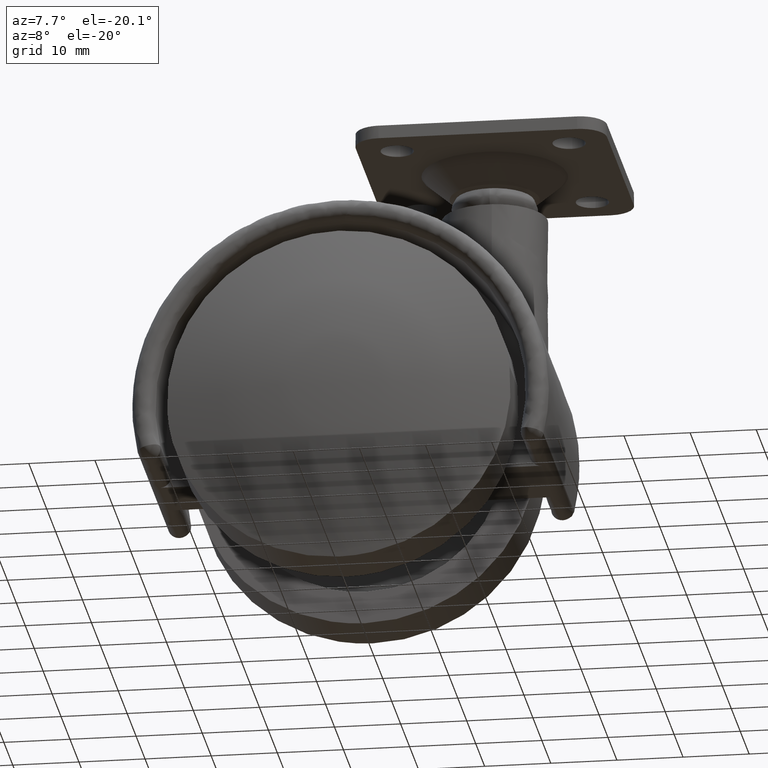
[diagram: clean part render]
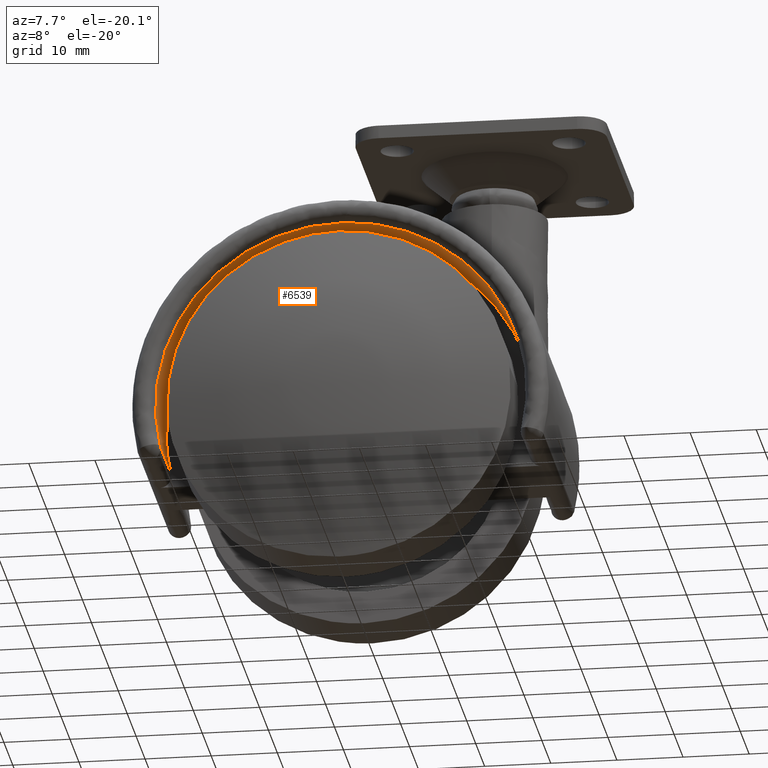
[diagram: same view with one face highlighted and labeled with its STEP entity id]
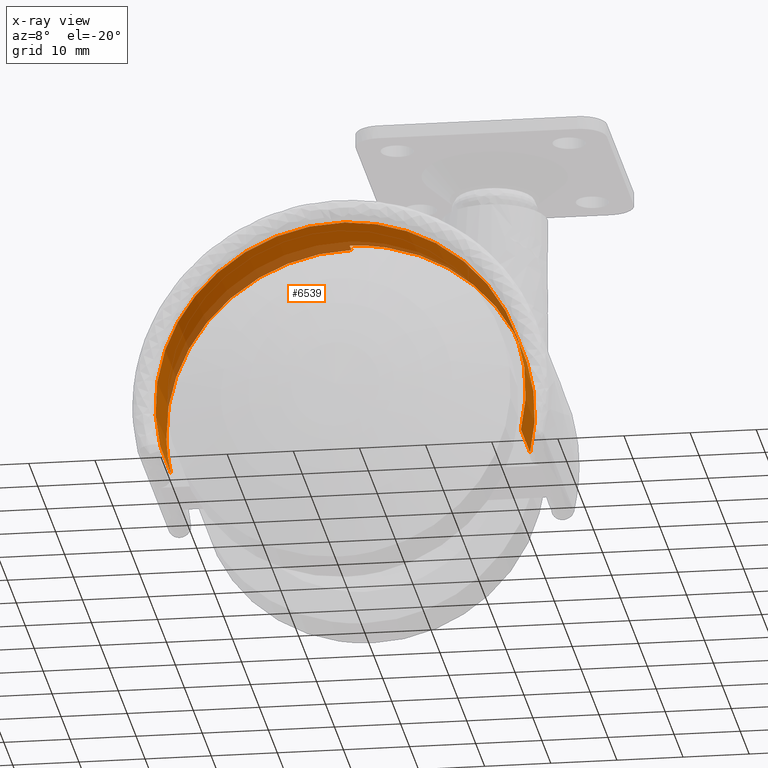
[diagram: x-ray of the same camera — body ghosted, the highlighted face saturated]
A machine part, auxiliary view. The second image highlights one B-rep face of the part: STEP entity #6539.
The next image is the same camera in x-ray: the body ghosted, the highlighted face saturated — about 21% of this face is hidden behind the body in this view.
In plain terms, the highlighted face is a freeform B-spline surface patch.
Its self-contained STEP definition (entity closure, byte-faithful):
#5617=CARTESIAN_POINT('',(-27.269766013083149,-17.100000000000001,-6.352941176470590));
#5618=VERTEX_POINT('',#5617);
#5690=CARTESIAN_POINT('',(27.269766013083149,-17.100000000000001,-6.352941176470590));
#5691=VERTEX_POINT('',#5690);
#5692=CARTESIAN_POINT('',(27.269766013083139,-17.100000000000001,-6.352941176470591));
#5693=CARTESIAN_POINT('',(31.615053142353418,-17.099999999999998,12.299043783461450));
#5694=CARTESIAN_POINT('',(15.807526571176719,-17.100000000000001,23.111081837541530));
#5695=CARTESIAN_POINT('',(1.387779E-014,-17.099999999999998,33.923119891621596));
#5696=CARTESIAN_POINT('',(-15.807526571176711,-17.100000000000001,23.111081837541541));
#5697=CARTESIAN_POINT('',(-31.615053142353418,-17.099999999999998,12.299043783461473));
#5698=CARTESIAN_POINT('',(-27.269766013083139,-17.100000000000001,-6.352941176470584));
#5706=(BOUNDED_CURVE()B_SPLINE_CURVE(2,(#5692,#5693,#5694,#5695,#5696,#5697,#5698),.UNSPECIFIED.,.F.,.U.)B_SPLINE_CURVE_WITH_KNOTS((3,2,2,3),(0.0,0.333333333333333,0.666666666666667,1.0),.UNSPECIFIED.)CURVE()GEOMETRIC_REPRESENTATION_ITEM()RATIONAL_B_SPLINE_CURVE((1.0,0.825395779912198,1.0,0.825395779912198,1.0,0.825395779912198,1.0))REPRESENTATION_ITEM(''));
#5707=EDGE_CURVE('',#5691,#5618,#5706,.T.);
#5821=CARTESIAN_POINT('',(27.269766013083149,-6.900000000000000,-6.352941176470590));
#5822=VERTEX_POINT('',#5821);
#5823=CARTESIAN_POINT('',(27.269766013083149,-6.900000000000000,-6.352941176470590));
#5824=CARTESIAN_POINT('',(27.269766013083149,-17.100000000000001,-6.352941176470590));
#5825=QUASI_UNIFORM_CURVE('',1,(#5823,#5824),.UNSPECIFIED.,.F.,.U.);
#5826=EDGE_CURVE('',#5822,#5691,#5825,.T.);
#5896=CARTESIAN_POINT('',(-27.269766013083149,-5.0,-6.352941176470590));
#5897=VERTEX_POINT('',#5896);
#5898=CARTESIAN_POINT('',(-27.269766013083149,-17.100000000000001,-6.352941176470590));
#5899=CARTESIAN_POINT('',(-27.269766013083149,-5.0,-6.352941176470590));
#5900=QUASI_UNIFORM_CURVE('',1,(#5898,#5899),.UNSPECIFIED.,.F.,.U.);
#5901=EDGE_CURVE('',#5618,#5897,#5900,.T.);
#6285=CARTESIAN_POINT('',(0.0,-6.900000000000000,28.0));
#6286=VERTEX_POINT('',#6285);
#6287=CARTESIAN_POINT('',(27.269766013083139,-6.900000000000000,-6.352941176470591));
#6288=CARTESIAN_POINT('',(30.337960238476821,-6.900000000000000,6.817169530529715));
#6289=CARTESIAN_POINT('',(21.930371097420782,-6.900000000000000,17.408584765264859));
#6290=CARTESIAN_POINT('',(13.522781956364728,-6.900000000000000,27.999999999999993));
#6291=CARTESIAN_POINT('',(0.0,-6.900000000000000,28.0));
#6299=(BOUNDED_CURVE()B_SPLINE_CURVE(2,(#6287,#6288,#6289,#6290,#6291),.UNSPECIFIED.,.F.,.U.)B_SPLINE_CURVE_WITH_KNOTS((3,2,3),(0.0,0.500000000000000,1.0),.UNSPECIFIED.)CURVE()GEOMETRIC_REPRESENTATION_ITEM()RATIONAL_B_SPLINE_CURVE((1.0,0.900481862723517,1.0,0.900481862723517,1.0))REPRESENTATION_ITEM(''));
#6300=EDGE_CURVE('',#5822,#6286,#6299,.T.);
#6322=CARTESIAN_POINT('',(0.0,-5.0,28.0));
#6323=VERTEX_POINT('',#6322);
#6324=CARTESIAN_POINT('',(0.0,-5.0,28.0));
#6325=CARTESIAN_POINT('',(0.0,-6.900000000000000,28.0));
#6326=QUASI_UNIFORM_CURVE('',1,(#6324,#6325),.UNSPECIFIED.,.F.,.U.);
#6327=EDGE_CURVE('',#6323,#6286,#6326,.T.);
#6459=CARTESIAN_POINT('',(0.0,-5.0,28.0));
#6460=CARTESIAN_POINT('',(-13.522781956364717,-5.0,27.999999999999993));
#6461=CARTESIAN_POINT('',(-21.930371097420771,-5.0,17.408584765264859));
#6462=CARTESIAN_POINT('',(-30.337960238476821,-5.0,6.817169530529719));
#6463=CARTESIAN_POINT('',(-27.269766013083139,-5.0,-6.352941176470587));
#6471=(BOUNDED_CURVE()B_SPLINE_CURVE(2,(#6459,#6460,#6461,#6462,#6463),.UNSPECIFIED.,.F.,.U.)B_SPLINE_CURVE_WITH_KNOTS((3,2,3),(0.0,0.500000000000000,1.0),.UNSPECIFIED.)CURVE()GEOMETRIC_REPRESENTATION_ITEM()RATIONAL_B_SPLINE_CURVE((1.0,0.900481862723517,1.0,0.900481862723517,1.0))REPRESENTATION_ITEM(''));
#6472=EDGE_CURVE('',#6323,#5897,#6471,.T.);
#6513=CARTESIAN_POINT('',(27.094120732568609,-17.402500000000011,-7.064603437489969));
#6514=CARTESIAN_POINT('',(27.094120732568609,-4.689937500000000,-7.064603437489969));
#6515=CARTESIAN_POINT('',(36.384545872156288,-17.402500000000000,28.565974077036881));
#6516=CARTESIAN_POINT('',(36.384545872156288,-4.689937500000000,28.565974077036881));
#6517=CARTESIAN_POINT('',(-0.432921813632214,-17.402500000000011,27.996652991085931));
#6518=CARTESIAN_POINT('',(-0.432921813632214,-4.689937500000000,27.996652991085931));
#6519=CARTESIAN_POINT('',(-37.250389499420713,-17.402500000000000,27.427331905134967));
#6520=CARTESIAN_POINT('',(-37.250389499420713,-4.689937500000000,27.427331905134967));
#6521=CARTESIAN_POINT('',(-26.862734087680749,-17.402500000000011,-7.898956724438589));
#6522=CARTESIAN_POINT('',(-26.862734087680749,-4.689937500000000,-7.898956724438589));
#6530=(BOUNDED_SURFACE()B_SPLINE_SURFACE(1,2,((#6513,#6515,#6517,#6519,#6521),(#6514,#6516,#6518,#6520,#6522)),.UNSPECIFIED.,.F.,.F.,.U.)B_SPLINE_SURFACE_WITH_KNOTS((2,2),(3,2,3),(0.0,12.712562500000010),(0.0,55.536384579978538,111.072769159957100),.UNSPECIFIED.)GEOMETRIC_REPRESENTATION_ITEM()RATIONAL_B_SPLINE_SURFACE(((1.0,0.605293988042894,1.0,0.605293988042894,1.0),(1.0,0.605293988042894,1.0,0.605293988042894,1.0)))REPRESENTATION_ITEM('')SURFACE());
#6531=ORIENTED_EDGE('',*,*,#5826,.T.);
#6532=ORIENTED_EDGE('',*,*,#5707,.T.);
#6533=ORIENTED_EDGE('',*,*,#5901,.T.);
#6534=ORIENTED_EDGE('',*,*,#6472,.F.);
#6535=ORIENTED_EDGE('',*,*,#6327,.T.);
#6536=ORIENTED_EDGE('',*,*,#6300,.F.);
#6537=EDGE_LOOP('',(#6531,#6532,#6533,#6534,#6535,#6536));
#6538=FACE_OUTER_BOUND('',#6537,.T.);
#6539=ADVANCED_FACE('',(#6538),#6530,.F.);